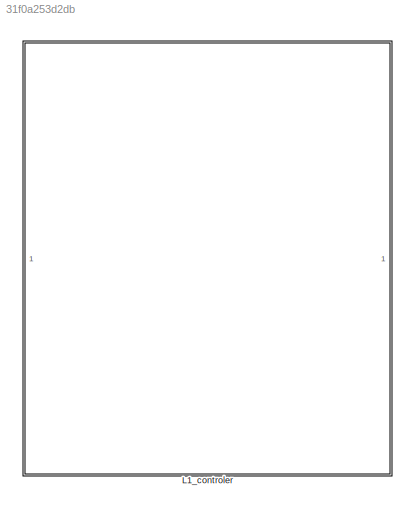
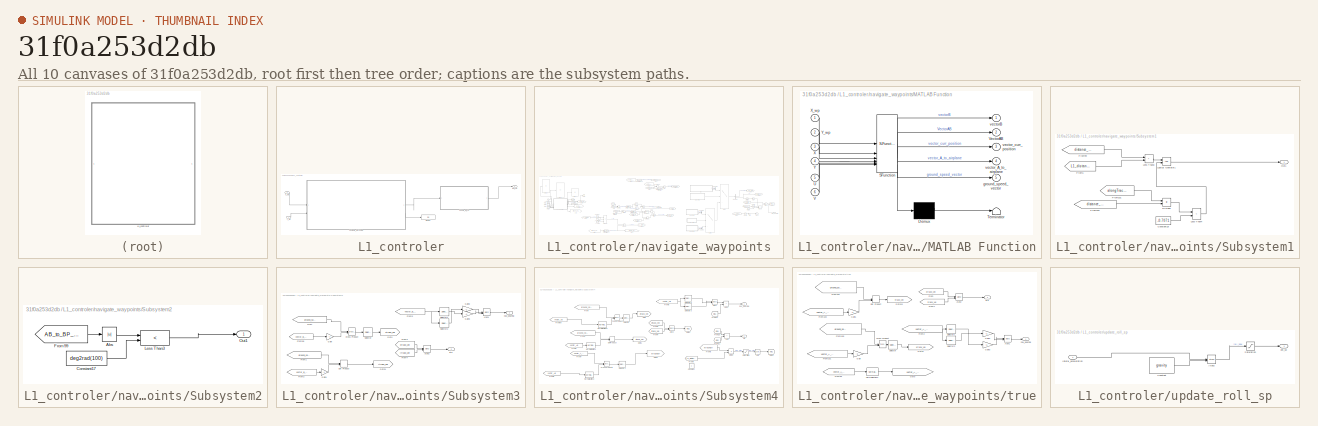
[diagram: thumbnail index - all 10 canvases of the model, root first then tree order]
MODEL slx_31f0a253d2db
KIND model
CONFIG AbsTol = auto
CONFIG EnableMultiTasking = off
CONFIG FixedStep = auto
CONFIG MaxStep = auto
CONFIG MinStep = auto
CONFIG RelTol = 1e-3
CONFIG SampleTimeConstraint = Unconstrained
CONFIG SolverName = VariableStepAuto
CONFIG StartTime = 0.0
CONFIG StopTime = 10.0
BLOCK [SubSystem] L1_controler
BLOCK [Display] L1_controler/Display
  Decimation = 1
BLOCK [Inport] L1_controler/X_wp
BLOCK [Inport] L1_controler/Y_wp
  Port = 2
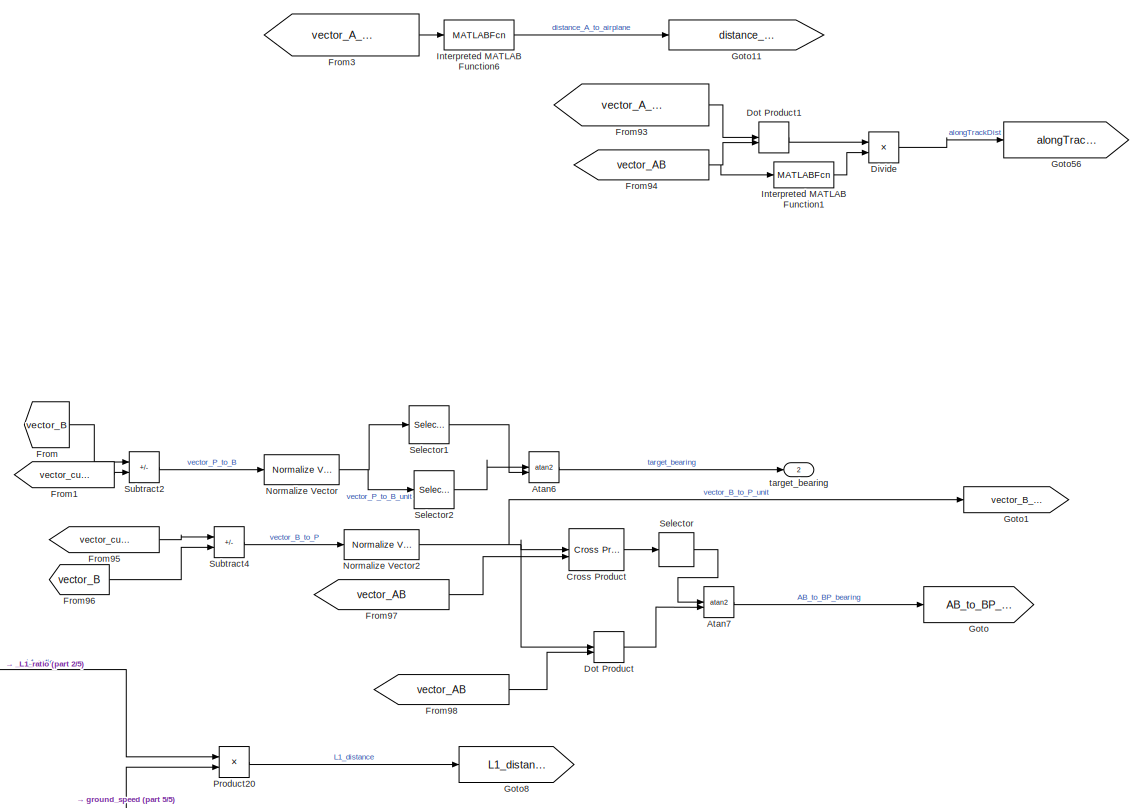
[diagram: L1_controler/navigate_waypoints - part 1/5, center side, full height]
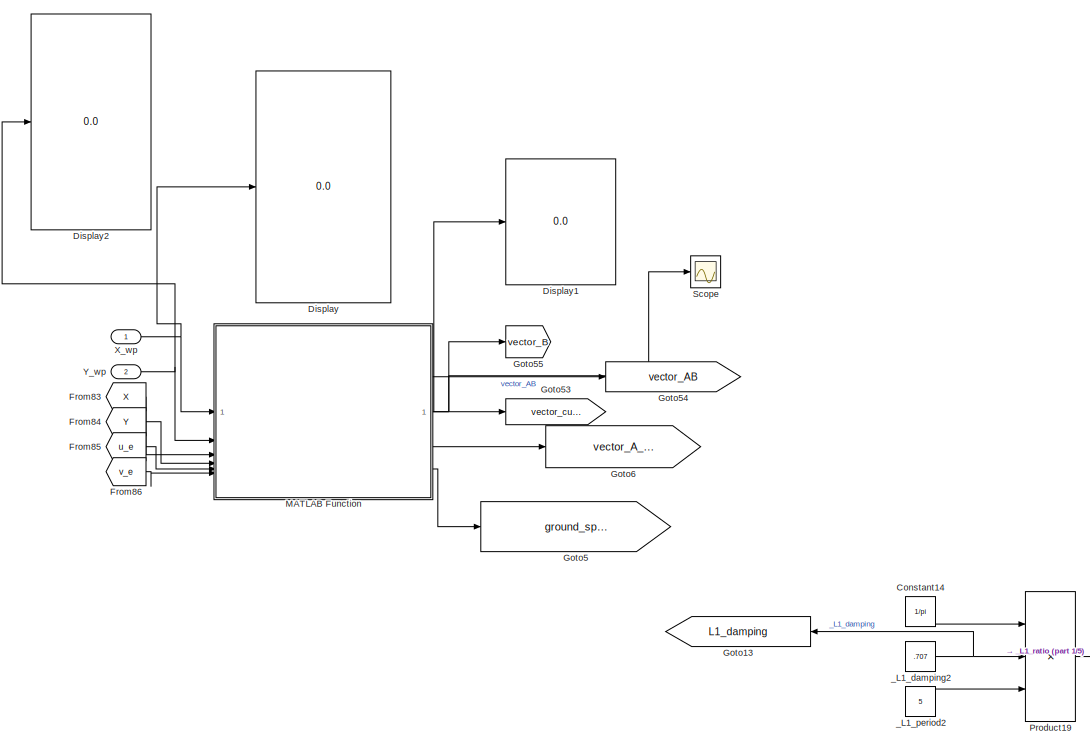
[diagram: L1_controler/navigate_waypoints - part 2/5, left side, full height]
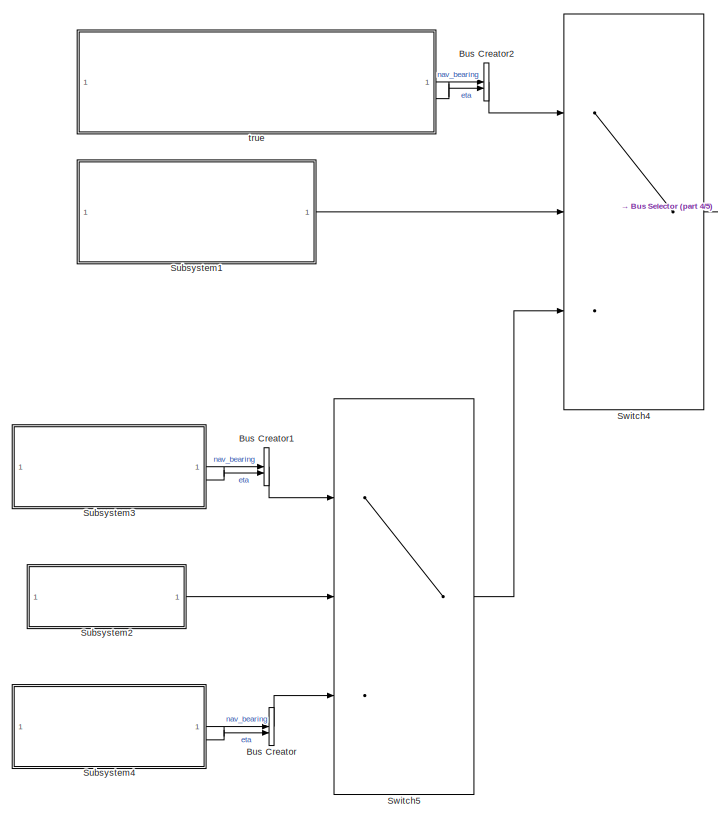
[diagram: L1_controler/navigate_waypoints - part 3/5, right side, full height]
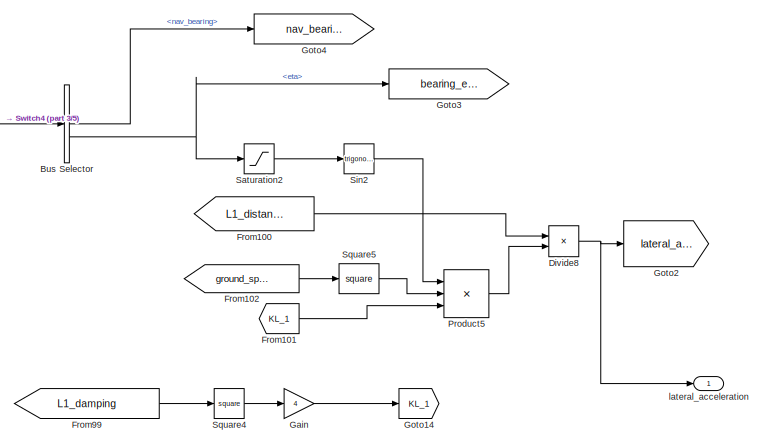
[diagram: L1_controler/navigate_waypoints - part 4/5, middle right region]
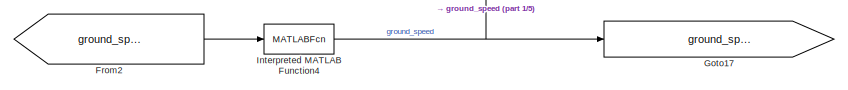
[diagram: L1_controler/navigate_waypoints - part 5/5, bottom left region]
BLOCK [SubSystem] L1_controler/navigate_waypoints
BLOCK [Trigonometry] L1_controler/navigate_waypoints/Atan6
  Operator = atan2
BLOCK [Trigonometry] L1_controler/navigate_waypoints/Atan7
  Operator = atan2
BLOCK [BusCreator] L1_controler/navigate_waypoints/Bus Creator
  DisplayOption = bar
  InheritFromInputs = on
  Inputs = 2
BLOCK [BusCreator] L1_controler/navigate_waypoints/Bus Creator1
  DisplayOption = bar
  InheritFromInputs = on
  Inputs = 2
BLOCK [BusCreator] L1_controler/navigate_waypoints/Bus Creator2
  DisplayOption = bar
  InheritFromInputs = on
  Inputs = 2
BLOCK [BusSelector] L1_controler/navigate_waypoints/Bus Selector
  OutputSignals = nav_bearing,eta
BLOCK [Constant] L1_controler/navigate_waypoints/Constant14
  Value = 1/pi
BLOCK [Reference] L1_controler/navigate_waypoints/Cross Product  REF=matrix_library/Cross Product
  SourceBlock = matrix_library/Cross Product
  SourceType = CrossProduct
BLOCK [Display] L1_controler/navigate_waypoints/Display
  Decimation = 1
BLOCK [Display] L1_controler/navigate_waypoints/Display1
  Decimation = 1
BLOCK [Display] L1_controler/navigate_waypoints/Display2
  Decimation = 1
BLOCK [Product] L1_controler/navigate_waypoints/Divide
  Inputs = */
BLOCK [Product] L1_controler/navigate_waypoints/Divide8
  Inputs = /*
BLOCK [DotProduct] L1_controler/navigate_waypoints/Dot Product
  OutDataTypeStr = Inherit: Inherit via internal rule
BLOCK [DotProduct] L1_controler/navigate_waypoints/Dot Product1
  OutDataTypeStr = Inherit: Inherit via internal rule
BLOCK [From] L1_controler/navigate_waypoints/From
  GotoTag = vector_B
  TagVisibility = global
BLOCK [From] L1_controler/navigate_waypoints/From1
  GotoTag = vector_curr_position
  TagVisibility = global
BLOCK [From] L1_controler/navigate_waypoints/From100
  GotoTag = L1_distance
  TagVisibility = global
BLOCK [From] L1_controler/navigate_waypoints/From101
  GotoTag = KL_1
  TagVisibility = global
BLOCK [From] L1_controler/navigate_waypoints/From102
  GotoTag = ground_speed
  TagVisibility = global
BLOCK [From] L1_controler/navigate_waypoints/From2
  GotoTag = ground_speed_vector
  TagVisibility = global
BLOCK [From] L1_controler/navigate_waypoints/From3
  GotoTag = vector_A_to_airplane
  TagVisibility = global
BLOCK [From] L1_controler/navigate_waypoints/From83
  GotoTag = X
  TagVisibility = global
BLOCK [From] L1_controler/navigate_waypoints/From84
  GotoTag = Y
  TagVisibility = global
BLOCK [From] L1_controler/navigate_waypoints/From85
  GotoTag = u_e
  TagVisibility = global
BLOCK [From] L1_controler/navigate_waypoints/From86
  GotoTag = v_e
  TagVisibility = global
BLOCK [From] L1_controler/navigate_waypoints/From93
  GotoTag = vector_A_to_airplane
  NameLocation = top
  TagVisibility = global
BLOCK [From] L1_controler/navigate_waypoints/From94
  GotoTag = vector_AB
  TagVisibility = global
BLOCK [From] L1_controler/navigate_waypoints/From95
  GotoTag = vector_curr_position
  TagVisibility = global
BLOCK [From] L1_controler/navigate_waypoints/From96
  GotoTag = vector_B
  TagVisibility = global
BLOCK [From] L1_controler/navigate_waypoints/From97
  GotoTag = vector_AB
  TagVisibility = global
BLOCK [From] L1_controler/navigate_waypoints/From98
  GotoTag = vector_AB
  TagVisibility = global
BLOCK [From] L1_controler/navigate_waypoints/From99
  GotoTag = L1_damping
  NameLocation = top
  TagVisibility = global
BLOCK [Gain] L1_controler/navigate_waypoints/Gain
  Gain = 4
BLOCK [Goto] L1_controler/navigate_waypoints/Goto
  GotoTag = AB_to_BP_bearing
  TagVisibility = global
BLOCK [Goto] L1_controler/navigate_waypoints/Goto1
  GotoTag = vector_B_to_P_unit
  TagVisibility = global
BLOCK [Goto] L1_controler/navigate_waypoints/Goto11
  GotoTag = distance_A_to_airplane
  TagVisibility = global
BLOCK [Goto] L1_controler/navigate_waypoints/Goto13
  GotoTag = L1_damping
  NameLocation = top
  TagVisibility = global
BLOCK [Goto] L1_controler/navigate_waypoints/Goto14
  GotoTag = KL_1
  TagVisibility = global
BLOCK [Goto] L1_controler/navigate_waypoints/Goto17
  GotoTag = ground_speed
  TagVisibility = global
BLOCK [Goto] L1_controler/navigate_waypoints/Goto2
  GotoTag = lateral_accel
  TagVisibility = global
BLOCK [Goto] L1_controler/navigate_waypoints/Goto3
  GotoTag = bearing_error
  TagVisibility = global
BLOCK [Goto] L1_controler/navigate_waypoints/Goto4
  GotoTag = nav_bearing
  TagVisibility = global
BLOCK [Goto] L1_controler/navigate_waypoints/Goto5
  GotoTag = ground_speed_vector
  TagVisibility = global
BLOCK [Goto] L1_controler/navigate_waypoints/Goto53
  GotoTag = vector_curr_position
  TagVisibility = global
BLOCK [Goto] L1_controler/navigate_waypoints/Goto54
  GotoTag = vector_AB
  TagVisibility = global
BLOCK [Goto] L1_controler/navigate_waypoints/Goto55
  GotoTag = vector_B
  TagVisibility = global
BLOCK [Goto] L1_controler/navigate_waypoints/Goto56
  GotoTag = alongTrackDist
  TagVisibility = global
BLOCK [Goto] L1_controler/navigate_waypoints/Goto6
  GotoTag = vector_A_to_airplane
  TagVisibility = global
BLOCK [Goto] L1_controler/navigate_waypoints/Goto8
  GotoTag = L1_distance
  TagVisibility = global
BLOCK [MATLABFcn] L1_controler/navigate_waypoints/Interpreted MATLAB Function1
  MATLABFcn = norm
BLOCK [MATLABFcn] L1_controler/navigate_waypoints/Interpreted MATLAB Function4
  MATLABFcn = norm
BLOCK [MATLABFcn] L1_controler/navigate_waypoints/Interpreted MATLAB Function6
  MATLABFcn = norm
BLOCK [SubSystem] L1_controler/navigate_waypoints/MATLAB Function
  ErrorFcn = Stateflow.Translate.translate
  PermitHierarchicalResolution = ExplicitOnly
  SFBlockType = MATLAB Function
  TreatAsAtomicUnit = on
BLOCK [Demux] L1_controler/navigate_waypoints/MATLAB Function/ Demux 
  Outputs = 1
BLOCK [S-Function] L1_controler/navigate_waypoints/MATLAB Function/ SFunction 
  EnableBusSupport = on
  FunctionName = sf_sfun
  PortCounts = [6 6]
  SFcnIsStateOwnerBlock = off
  SFunctionDeploymentMode = off
  Tag = Stateflow S-Function 2
BLOCK [Terminator] L1_controler/navigate_waypoints/MATLAB Function/ Terminator 
BLOCK [Inport] L1_controler/navigate_waypoints/MATLAB Function/U
  Port = 5
BLOCK [Inport] L1_controler/navigate_waypoints/MATLAB Function/V
  Port = 6
BLOCK [Outport] L1_controler/navigate_waypoints/MATLAB Function/VectorAB
  Port = 2
BLOCK [Inport] L1_controler/navigate_waypoints/MATLAB Function/X
  Port = 3
BLOCK [Inport] L1_controler/navigate_waypoints/MATLAB Function/X_wp
BLOCK [Inport] L1_controler/navigate_waypoints/MATLAB Function/Y
  Port = 4
BLOCK [Inport] L1_controler/navigate_waypoints/MATLAB Function/Y_wp
  Port = 2
BLOCK [Outport] L1_controler/navigate_waypoints/MATLAB Function/ground_speed_vector
  Port = 5
BLOCK [Outport] L1_controler/navigate_waypoints/MATLAB Function/vectorB
BLOCK [Outport] L1_controler/navigate_waypoints/MATLAB Function/vector_A_to_airplane
  Port = 4
BLOCK [Outport] L1_controler/navigate_waypoints/MATLAB Function/vector_curr_position
  Port = 3
BLOCK [Reference] L1_controler/navigate_waypoints/Normalize Vector  REF=vrlib/Utilities/Normalize Vector
  SourceBlock = vrlib/Utilities/Normalize Vector
  SourceType = Normalize Vector
BLOCK [Reference] L1_controler/navigate_waypoints/Normalize Vector2  REF=vrlib/Utilities/Normalize Vector
  Commented = through
  SourceBlock = vrlib/Utilities/Normalize Vector
  SourceType = Normalize Vector
BLOCK [Product] L1_controler/navigate_waypoints/Product19
  Inputs = 3
BLOCK [Product] L1_controler/navigate_waypoints/Product20
BLOCK [Product] L1_controler/navigate_waypoints/Product5
  Inputs = 3
BLOCK [Saturate] L1_controler/navigate_waypoints/Saturation2
  LowerLimit = -pi/2
  UpperLimit = pi/2
BLOCK [Scope] L1_controler/navigate_waypoints/Scope
  Floating = off
  NumInputPorts = 1
  ScopeSpecificationString = Simulink.scopes.TimeScopeBlockCfg('CurrentConfiguration', extmgr.ConfigurationSet(extmgr.Configuration('Core','General UI',true),extmgr.Configuration('Core','Source UI',true),extmgr.Configuration('Sources','WiredSimulink',true,'DataLoggingVariableName','ScopeData1'),extmgr.Configuration('Visuals','Time Domain',true),extmgr.Configuration('Tools','Plot Navigation',true),extmgr.Configuration('Tools',...<+40ch>
BLOCK [Selector] L1_controler/navigate_waypoints/Selector
  IndexOptions = Index vector (dialog)
  Indices = 3
  InputPortWidth = 3
  OutputSizes = 1
BLOCK [Selector] L1_controler/navigate_waypoints/Selector1
  IndexOptions = Index vector (dialog)
  Indices = 1
  InputPortWidth = 3
  OutputSizes = 1
BLOCK [Selector] L1_controler/navigate_waypoints/Selector2
  IndexOptions = Index vector (dialog)
  Indices = 2
  InputPortWidth = 3
  OutputSizes = 1
BLOCK [Trigonometry] L1_controler/navigate_waypoints/Sin2
BLOCK [Math] L1_controler/navigate_waypoints/Square4
  Operator = square
BLOCK [Math] L1_controler/navigate_waypoints/Square5
  Operator = square
BLOCK [SubSystem] L1_controler/navigate_waypoints/Subsystem1
BLOCK [Constant] L1_controler/navigate_waypoints/Subsystem1/Constant18
  Value = -0.7071
BLOCK [Product] L1_controler/navigate_waypoints/Subsystem1/Divide8
  Inputs = */
BLOCK [From] L1_controler/navigate_waypoints/Subsystem1/From1
  GotoTag = L1_distance
  TagVisibility = global
BLOCK [From] L1_controler/navigate_waypoints/Subsystem1/From101
  GotoTag = alongTrackDist
  TagVisibility = global
BLOCK [From] L1_controler/navigate_waypoints/Subsystem1/From102
  GotoTag = distance_A_to_airplane
  TagVisibility = global
BLOCK [From] L1_controler/navigate_waypoints/Subsystem1/From99
  GotoTag = distance_A_to_airplane
  TagVisibility = global
BLOCK [RelationalOperator] L1_controler/navigate_waypoints/Subsystem1/Less Than3
  InputSameDT = off
  Operator = >
  OutDataTypeStr = boolean
  RndMeth = Simplest
BLOCK [RelationalOperator] L1_controler/navigate_waypoints/Subsystem1/Less Than4
  InputSameDT = off
  Operator = <
  OutDataTypeStr = boolean
  RndMeth = Simplest
BLOCK [Logic] L1_controler/navigate_waypoints/Subsystem1/Logical Operator1
  AllPortsSameDT = off
  OutDataTypeStr = boolean
BLOCK [Outport] L1_controler/navigate_waypoints/Subsystem1/Out1
BLOCK [SubSystem] L1_controler/navigate_waypoints/Subsystem2
BLOCK [Abs] L1_controler/navigate_waypoints/Subsystem2/Abs
  SaturateOnIntegerOverflow = off
BLOCK [Constant] L1_controler/navigate_waypoints/Subsystem2/Constant17
  Value = deg2rad(100)
BLOCK [From] L1_controler/navigate_waypoints/Subsystem2/From99
  GotoTag = AB_to_BP_bearing
  TagVisibility = global
BLOCK [RelationalOperator] L1_controler/navigate_waypoints/Subsystem2/Less Than3
  InputSameDT = off
  Operator = <
  OutDataTypeStr = boolean
  RndMeth = Simplest
BLOCK [Outport] L1_controler/navigate_waypoints/Subsystem2/Out1
BLOCK [SubSystem] L1_controler/navigate_waypoints/Subsystem3
BLOCK [Trigonometry] L1_controler/navigate_waypoints/Subsystem3/Atan1
  Operator = atan2
BLOCK [Trigonometry] L1_controler/navigate_waypoints/Subsystem3/Atan2
  Operator = atan2
BLOCK [Reference] L1_controler/navigate_waypoints/Subsystem3/Cross Product  REF=vrlib/Utilities/Cross Product
  SourceBlock = vrlib/Utilities/Cross Product
  SourceType = Cross Product
BLOCK [DotProduct] L1_controler/navigate_waypoints/Subsystem3/Dot Product
  OutDataTypeStr = Inherit: Inherit via internal rule
BLOCK [From] L1_controler/navigate_waypoints/Subsystem3/From
  GotoTag = ground_speed_vector
  TagVisibility = global
BLOCK [From] L1_controler/navigate_waypoints/Subsystem3/From1
  GotoTag = ground_speed_vector
  TagVisibility = global
BLOCK [From] L1_controler/navigate_waypoints/Subsystem3/From2
  GotoTag = vector_B_to_P_unit
  TagVisibility = global
BLOCK [From] L1_controler/navigate_waypoints/Subsystem3/From3
  GotoTag = xtrack_vel
BLOCK [From] L1_controler/navigate_waypoints/Subsystem3/From4
  GotoTag = ltrack_vel
BLOCK [From] L1_controler/navigate_waypoints/Subsystem3/From5
  GotoTag = vector_B_to_P_unit
  TagVisibility = global
BLOCK [From] L1_controler/navigate_waypoints/Subsystem3/From99
  GotoTag = vector_B_to_P_unit
  TagVisibility = global
BLOCK [Gain] L1_controler/navigate_waypoints/Subsystem3/Gain
  Gain = -1
BLOCK [Gain] L1_controler/navigate_waypoints/Subsystem3/Gain1
  Gain = -1
BLOCK [Gain] L1_controler/navigate_waypoints/Subsystem3/Gain2
  Gain = -1
BLOCK [Gain] L1_controler/navigate_waypoints/Subsystem3/Gain3
  Gain = -1
BLOCK [Goto] L1_controler/navigate_waypoints/Subsystem3/Goto
  GotoTag = xtrack_vel
BLOCK [Goto] L1_controler/navigate_waypoints/Subsystem3/Goto1
  GotoTag = ltrack_vel
BLOCK [Selector] L1_controler/navigate_waypoints/Subsystem3/Selector
  IndexOptions = Index vector (dialog)
  Indices = 3
  InputPortWidth = 3
  OutputSizes = 1
BLOCK [Selector] L1_controler/navigate_waypoints/Subsystem3/Selector1
  IndexOptions = Index vector (dialog)
  Indices = 1
  InputPortWidth = 3
  OutputSizes = 1
BLOCK [Selector] L1_controler/navigate_waypoints/Subsystem3/Selector2
  IndexOptions = Index vector (dialog)
  Indices = 2
  InputPortWidth = 3
  OutputSizes = 1
BLOCK [Outport] L1_controler/navigate_waypoints/Subsystem3/eta
  Port = 2
BLOCK [Outport] L1_controler/navigate_waypoints/Subsystem3/nav_bearing
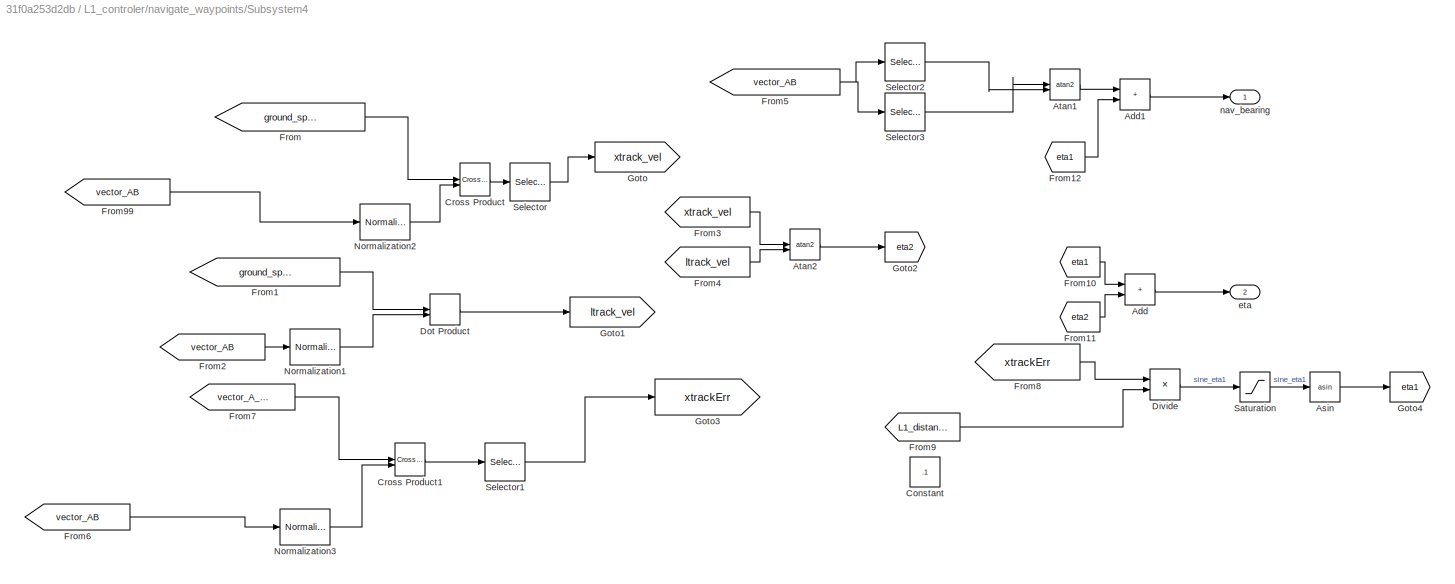
BLOCK [SubSystem] L1_controler/navigate_waypoints/Subsystem4
BLOCK [Sum] L1_controler/navigate_waypoints/Subsystem4/Add
  IconShape = rectangular
BLOCK [Sum] L1_controler/navigate_waypoints/Subsystem4/Add1
  IconShape = rectangular
BLOCK [Trigonometry] L1_controler/navigate_waypoints/Subsystem4/Asin
  Operator = asin
BLOCK [Trigonometry] L1_controler/navigate_waypoints/Subsystem4/Atan1
  Operator = atan2
BLOCK [Trigonometry] L1_controler/navigate_waypoints/Subsystem4/Atan2
  Operator = atan2
BLOCK [Constant] L1_controler/navigate_waypoints/Subsystem4/Constant
  Value = .1
BLOCK [Reference] L1_controler/navigate_waypoints/Subsystem4/Cross Product  REF=vrlib/Utilities/Cross Product
  SourceBlock = vrlib/Utilities/Cross Product
  SourceType = Cross Product
BLOCK [Reference] L1_controler/navigate_waypoints/Subsystem4/Cross Product1  REF=vrlib/Utilities/Cross Product
  SourceBlock = vrlib/Utilities/Cross Product
  SourceType = Cross Product
BLOCK [Product] L1_controler/navigate_waypoints/Subsystem4/Divide
  Inputs = */
BLOCK [DotProduct] L1_controler/navigate_waypoints/Subsystem4/Dot Product
  OutDataTypeStr = Inherit: Inherit via internal rule
BLOCK [From] L1_controler/navigate_waypoints/Subsystem4/From
  GotoTag = ground_speed_vector
  TagVisibility = global
BLOCK [From] L1_controler/navigate_waypoints/Subsystem4/From1
  GotoTag = ground_speed_vector
  TagVisibility = global
BLOCK [From] L1_controler/navigate_waypoints/Subsystem4/From10
  GotoTag = eta1
BLOCK [From] L1_controler/navigate_waypoints/Subsystem4/From11
  GotoTag = eta2
BLOCK [From] L1_controler/navigate_waypoints/Subsystem4/From12
  GotoTag = eta1
BLOCK [From] L1_controler/navigate_waypoints/Subsystem4/From2
  GotoTag = vector_AB
  TagVisibility = global
BLOCK [From] L1_controler/navigate_waypoints/Subsystem4/From3
  GotoTag = xtrack_vel
BLOCK [From] L1_controler/navigate_waypoints/Subsystem4/From4
  GotoTag = ltrack_vel
BLOCK [From] L1_controler/navigate_waypoints/Subsystem4/From5
  GotoTag = vector_AB
  TagVisibility = global
BLOCK [From] L1_controler/navigate_waypoints/Subsystem4/From6
  GotoTag = vector_AB
  TagVisibility = global
BLOCK [From] L1_controler/navigate_waypoints/Subsystem4/From7
  GotoTag = vector_A_to_airplane
  TagVisibility = global
BLOCK [From] L1_controler/navigate_waypoints/Subsystem4/From8
  GotoTag = xtrackErr
BLOCK [From] L1_controler/navigate_waypoints/Subsystem4/From9
  GotoTag = L1_distance
  TagVisibility = global
BLOCK [From] L1_controler/navigate_waypoints/Subsystem4/From99
  GotoTag = vector_AB
  TagVisibility = global
BLOCK [Goto] L1_controler/navigate_waypoints/Subsystem4/Goto
  GotoTag = xtrack_vel
BLOCK [Goto] L1_controler/navigate_waypoints/Subsystem4/Goto1
  GotoTag = ltrack_vel
BLOCK [Goto] L1_controler/navigate_waypoints/Subsystem4/Goto2
  GotoTag = eta2
BLOCK [Goto] L1_controler/navigate_waypoints/Subsystem4/Goto3
  GotoTag = xtrackErr
BLOCK [Goto] L1_controler/navigate_waypoints/Subsystem4/Goto4
  GotoTag = eta1
BLOCK [Reference] L1_controler/navigate_waypoints/Subsystem4/Normalization1  REF=dspmathops/Normalization
  SourceBlock = dspmathops/Normalization
  SourceType = Normalization
BLOCK [Reference] L1_controler/navigate_waypoints/Subsystem4/Normalization2  REF=dspmathops/Normalization
  SourceBlock = dspmathops/Normalization
  SourceType = Normalization
BLOCK [Reference] L1_controler/navigate_waypoints/Subsystem4/Normalization3  REF=dspmathops/Normalization
  SourceBlock = dspmathops/Normalization
  SourceType = Normalization
BLOCK [Saturate] L1_controler/navigate_waypoints/Subsystem4/Saturation
  LowerLimit = -sin(pi/4)
  UpperLimit = sin(pi/4)
BLOCK [Selector] L1_controler/navigate_waypoints/Subsystem4/Selector
  IndexOptions = Index vector (dialog)
  Indices = [3]
  InputPortWidth = 3
  OutputSizes = 1
BLOCK [Selector] L1_controler/navigate_waypoints/Subsystem4/Selector1
  IndexOptions = Index vector (dialog)
  Indices = [3]
  InputPortWidth = 3
  OutputSizes = 1
BLOCK [Selector] L1_controler/navigate_waypoints/Subsystem4/Selector2
  IndexOptions = Index vector (dialog)
  Indices = 1
  InputPortWidth = 3
  OutputSizes = 1
BLOCK [Selector] L1_controler/navigate_waypoints/Subsystem4/Selector3
  IndexOptions = Index vector (dialog)
  Indices = 2
  InputPortWidth = 3
  OutputSizes = 1
BLOCK [Outport] L1_controler/navigate_waypoints/Subsystem4/eta
  Port = 2
BLOCK [Outport] L1_controler/navigate_waypoints/Subsystem4/nav_bearing
BLOCK [Sum] L1_controler/navigate_waypoints/Subtract2
  IconShape = rectangular
  Inputs = +-
BLOCK [Sum] L1_controler/navigate_waypoints/Subtract4
  IconShape = rectangular
  Inputs = +-
BLOCK [Switch] L1_controler/navigate_waypoints/Switch4
  Criteria = u2 ~= 0
  InputSameDT = off
  SaturateOnIntegerOverflow = off
BLOCK [Switch] L1_controler/navigate_waypoints/Switch5
  Criteria = u2 ~= 0
  InputSameDT = off
  SaturateOnIntegerOverflow = off
BLOCK [Inport] L1_controler/navigate_waypoints/X_wp
BLOCK [Inport] L1_controler/navigate_waypoints/Y_wp
  Port = 2
BLOCK [Constant] L1_controler/navigate_waypoints/_L1_damping2
  Value = .707
BLOCK [Constant] L1_controler/navigate_waypoints/_L1_period2
  Value = 5
BLOCK [Outport] L1_controler/navigate_waypoints/lateral_acceleration
BLOCK [Outport] L1_controler/navigate_waypoints/target_bearing
  Port = 2
BLOCK [SubSystem] L1_controler/navigate_waypoints/true
BLOCK [Trigonometry] L1_controler/navigate_waypoints/true/Atan1
  Operator = atan2
BLOCK [Trigonometry] L1_controler/navigate_waypoints/true/Atan2
  Operator = atan2
BLOCK [Reference] L1_controler/navigate_waypoints/true/Cross Product  REF=vrlib/Utilities/Cross Product
  SourceBlock = vrlib/Utilities/Cross Product
  SourceType = Cross Product
BLOCK [DotProduct] L1_controler/navigate_waypoints/true/Dot Product
  OutDataTypeStr = Inherit: Inherit via internal rule
BLOCK [From] L1_controler/navigate_waypoints/true/From
  GotoTag = xtrack_vel
BLOCK [From] L1_controler/navigate_waypoints/true/From1
  GotoTag = ltrack_vel
BLOCK [From] L1_controler/navigate_waypoints/true/From100
  GotoTag = ground_speed_vector
  TagVisibility = global
BLOCK [From] L1_controler/navigate_waypoints/true/From101
  GotoTag = vector_A_to_airplane_unit
BLOCK [From] L1_controler/navigate_waypoints/true/From102
  GotoTag = ground_speed_vector
  TagVisibility = global
BLOCK [From] L1_controler/navigate_waypoints/true/From103
  GotoTag = vector_A_to_airplane_unit
BLOCK [From] L1_controler/navigate_waypoints/true/From2
  GotoTag = vector_A_to_airplane_unit
BLOCK [From] L1_controler/navigate_waypoints/true/From99
  GotoTag = vector_A_to_airplane
  TagVisibility = global
BLOCK [Gain] L1_controler/navigate_waypoints/true/Gain
  Gain = -1
BLOCK [Gain] L1_controler/navigate_waypoints/true/Gain1
  Gain = -1
BLOCK [Gain] L1_controler/navigate_waypoints/true/Gain2
  Gain = -1
BLOCK [Gain] L1_controler/navigate_waypoints/true/Gain3
  Gain = -1
BLOCK [Goto] L1_controler/navigate_waypoints/true/Goto
  GotoTag = vector_A_to_airplane_unit
BLOCK [Goto] L1_controler/navigate_waypoints/true/Goto1
  GotoTag = xtrack_vel
BLOCK [Goto] L1_controler/navigate_waypoints/true/Goto13
  GotoTag = ltrack_vel
BLOCK [Reference] L1_controler/navigate_waypoints/true/Normalization4  REF=dspmathops/Normalization
  SourceBlock = dspmathops/Normalization
  SourceType = Normalization
BLOCK [Selector] L1_controler/navigate_waypoints/true/Selector
  IndexOptions = Index vector (dialog)
  Indices = 3
  InputPortWidth = 3
  OutputSizes = 1
BLOCK [Selector] L1_controler/navigate_waypoints/true/Selector1
  IndexOptions = Index vector (dialog)
  Indices = 1
  InputPortWidth = 3
  OutputSizes = 1
BLOCK [Selector] L1_controler/navigate_waypoints/true/Selector2
  IndexOptions = Index vector (dialog)
  Indices = 2
  InputPortWidth = 3
  OutputSizes = 1
BLOCK [Outport] L1_controler/navigate_waypoints/true/eta
  Port = 2
BLOCK [Outport] L1_controler/navigate_waypoints/true/nav_bearing
BLOCK [Outport] L1_controler/phi_sp
BLOCK [SubSystem] L1_controler/update_roll_sp
BLOCK [Trigonometry] L1_controler/update_roll_sp/Atan2
  Operator = atan2
BLOCK [Constant] L1_controler/update_roll_sp/Constant
  Value = gravity
BLOCK [Saturate] L1_controler/update_roll_sp/Saturation
  LowerLimit = -deg2rad(70)
  UpperLimit = deg2rad(70)
BLOCK [Inport] L1_controler/update_roll_sp/lateral_acceleration
BLOCK [Outport] L1_controler/update_roll_sp/phi_sp
LINE L1_controler/X_wp:1 -> L1_controler/navigate_waypoints:1
LINE L1_controler/Y_wp:1 -> L1_controler/navigate_waypoints:2
LINE L1_controler/navigate_waypoints/Atan6:1 -> L1_controler/navigate_waypoints/target_bearing:1
LINE L1_controler/navigate_waypoints/Atan7:1 -> L1_controler/navigate_waypoints/Goto:1
LINE L1_controler/navigate_waypoints/Bus Creator1:1 -> L1_controler/navigate_waypoints/Switch5:1
LINE L1_controler/navigate_waypoints/Bus Creator2:1 -> L1_controler/navigate_waypoints/Switch4:1
LINE L1_controler/navigate_waypoints/Bus Creator:1 -> L1_controler/navigate_waypoints/Switch5:3
LINE L1_controler/navigate_waypoints/Bus Selector:1 -> L1_controler/navigate_waypoints/Goto4:1
NET L1_controler/navigate_waypoints/Bus Selector:2 -> L1_controler/navigate_waypoints/Goto3:1, L1_controler/navigate_waypoints/Saturation2:1
LINE L1_controler/navigate_waypoints/Constant14:1 -> L1_controler/navigate_waypoints/Product19:1
LINE L1_controler/navigate_waypoints/Cross Product:1 -> L1_controler/navigate_waypoints/Selector:1
NET L1_controler/navigate_waypoints/Divide8:1 -> L1_controler/navigate_waypoints/Goto2:1, L1_controler/navigate_waypoints/lateral_acceleration:1
LINE L1_controler/navigate_waypoints/Divide:1 -> L1_controler/navigate_waypoints/Goto56:1
LINE L1_controler/navigate_waypoints/Dot Product1:1 -> L1_controler/navigate_waypoints/Divide:1
LINE L1_controler/navigate_waypoints/Dot Product:1 -> L1_controler/navigate_waypoints/Atan7:2
LINE L1_controler/navigate_waypoints/From100:1 -> L1_controler/navigate_waypoints/Divide8:1
LINE L1_controler/navigate_waypoints/From101:1 -> L1_controler/navigate_waypoints/Product5:3
LINE L1_controler/navigate_waypoints/From102:1 -> L1_controler/navigate_waypoints/Square5:1
LINE L1_controler/navigate_waypoints/From1:1 -> L1_controler/navigate_waypoints/Subtract2:2
LINE L1_controler/navigate_waypoints/From2:1 -> L1_controler/navigate_waypoints/Interpreted MATLAB Function4:1
LINE L1_controler/navigate_waypoints/From3:1 -> L1_controler/navigate_waypoints/Interpreted MATLAB Function6:1
LINE L1_controler/navigate_waypoints/From83:1 -> L1_controler/navigate_waypoints/MATLAB Function:3
LINE L1_controler/navigate_waypoints/From84:1 -> L1_controler/navigate_waypoints/MATLAB Function:4
LINE L1_controler/navigate_waypoints/From85:1 -> L1_controler/navigate_waypoints/MATLAB Function:5
LINE L1_controler/navigate_waypoints/From86:1 -> L1_controler/navigate_waypoints/MATLAB Function:6
LINE L1_controler/navigate_waypoints/From93:1 -> L1_controler/navigate_waypoints/Dot Product1:1
NET L1_controler/navigate_waypoints/From94:1 -> L1_controler/navigate_waypoints/Dot Product1:2, L1_controler/navigate_waypoints/Interpreted MATLAB Function1:1
LINE L1_controler/navigate_waypoints/From95:1 -> L1_controler/navigate_waypoints/Subtract4:1
LINE L1_controler/navigate_waypoints/From96:1 -> L1_controler/navigate_waypoints/Subtract4:2
LINE L1_controler/navigate_waypoints/From97:1 -> L1_controler/navigate_waypoints/Cross Product:2
LINE L1_controler/navigate_waypoints/From98:1 -> L1_controler/navigate_waypoints/Dot Product:2
LINE L1_controler/navigate_waypoints/From99:1 -> L1_controler/navigate_waypoints/Square4:1
LINE L1_controler/navigate_waypoints/From:1 -> L1_controler/navigate_waypoints/Subtract2:1
LINE L1_controler/navigate_waypoints/Gain:1 -> L1_controler/navigate_waypoints/Goto14:1
LINE L1_controler/navigate_waypoints/Interpreted MATLAB Function1:1 -> L1_controler/navigate_waypoints/Divide:2
NET L1_controler/navigate_waypoints/Interpreted MATLAB Function4:1 -> L1_controler/navigate_waypoints/Goto17:1, L1_controler/navigate_waypoints/Product20:2
LINE L1_controler/navigate_waypoints/Interpreted MATLAB Function6:1 -> L1_controler/navigate_waypoints/Goto11:1
NET L1_controler/navigate_waypoints/MATLAB Function:1 -> L1_controler/navigate_waypoints/Display1:1, L1_controler/navigate_waypoints/Goto55:1, L1_controler/navigate_waypoints/Scope:1
LINE L1_controler/navigate_waypoints/MATLAB Function:2 -> L1_controler/navigate_waypoints/Goto54:1
LINE L1_controler/navigate_waypoints/MATLAB Function:3 -> L1_controler/navigate_waypoints/Goto53:1
LINE L1_controler/navigate_waypoints/MATLAB Function:4 -> L1_controler/navigate_waypoints/Goto6:1
LINE L1_controler/navigate_waypoints/MATLAB Function:5 -> L1_controler/navigate_waypoints/Goto5:1
NET L1_controler/navigate_waypoints/Normalize Vector2:1 -> L1_controler/navigate_waypoints/Cross Product:1, L1_controler/navigate_waypoints/Dot Product:1, L1_controler/navigate_waypoints/Goto1:1
NET L1_controler/navigate_waypoints/Normalize Vector:1 -> L1_controler/navigate_waypoints/Selector1:1, L1_controler/navigate_waypoints/Selector2:1
LINE L1_controler/navigate_waypoints/Product19:1 -> L1_controler/navigate_waypoints/Product20:1
LINE L1_controler/navigate_waypoints/Product20:1 -> L1_controler/navigate_waypoints/Goto8:1
LINE L1_controler/navigate_waypoints/Product5:1 -> L1_controler/navigate_waypoints/Divide8:2
LINE L1_controler/navigate_waypoints/Saturation2:1 -> L1_controler/navigate_waypoints/Sin2:1
LINE L1_controler/navigate_waypoints/Selector1:1 -> L1_controler/navigate_waypoints/Atan6:2
LINE L1_controler/navigate_waypoints/Selector2:1 -> L1_controler/navigate_waypoints/Atan6:1
LINE L1_controler/navigate_waypoints/Selector:1 -> L1_controler/navigate_waypoints/Atan7:1
LINE L1_controler/navigate_waypoints/Sin2:1 -> L1_controler/navigate_waypoints/Product5:1
LINE L1_controler/navigate_waypoints/Square4:1 -> L1_controler/navigate_waypoints/Gain:1
LINE L1_controler/navigate_waypoints/Square5:1 -> L1_controler/navigate_waypoints/Product5:2
LINE L1_controler/navigate_waypoints/Subsystem1/Constant18:1 -> L1_controler/navigate_waypoints/Subsystem1/Less Than4:2
LINE L1_controler/navigate_waypoints/Subsystem1/Divide8:1 -> L1_controler/navigate_waypoints/Subsystem1/Less Than4:1
LINE L1_controler/navigate_waypoints/Subsystem1/From101:1 -> L1_controler/navigate_waypoints/Subsystem1/Divide8:1
LINE L1_controler/navigate_waypoints/Subsystem1/From102:1 -> L1_controler/navigate_waypoints/Subsystem1/Divide8:2
LINE L1_controler/navigate_waypoints/Subsystem1/From1:1 -> L1_controler/navigate_waypoints/Subsystem1/Less Than3:2
LINE L1_controler/navigate_waypoints/Subsystem1/From99:1 -> L1_controler/navigate_waypoints/Subsystem1/Less Than3:1
LINE L1_controler/navigate_waypoints/Subsystem1/Less Than3:1 -> L1_controler/navigate_waypoints/Subsystem1/Logical Operator1:1
LINE L1_controler/navigate_waypoints/Subsystem1/Less Than4:1 -> L1_controler/navigate_waypoints/Subsystem1/Logical Operator1:2
LINE L1_controler/navigate_waypoints/Subsystem1/Logical Operator1:1 -> L1_controler/navigate_waypoints/Subsystem1/Out1:1
LINE L1_controler/navigate_waypoints/Subsystem1:1 -> L1_controler/navigate_waypoints/Switch4:2
LINE L1_controler/navigate_waypoints/Subsystem2/Abs:1 -> L1_controler/navigate_waypoints/Subsystem2/Less Than3:1
LINE L1_controler/navigate_waypoints/Subsystem2/Constant17:1 -> L1_controler/navigate_waypoints/Subsystem2/Less Than3:2
LINE L1_controler/navigate_waypoints/Subsystem2/From99:1 -> L1_controler/navigate_waypoints/Subsystem2/Abs:1
LINE L1_controler/navigate_waypoints/Subsystem2/Less Than3:1 -> L1_controler/navigate_waypoints/Subsystem2/Out1:1
LINE L1_controler/navigate_waypoints/Subsystem2:1 -> L1_controler/navigate_waypoints/Switch5:2
LINE L1_controler/navigate_waypoints/Subsystem3/Atan1:1 -> L1_controler/navigate_waypoints/Subsystem3/nav_bearing:1
LINE L1_controler/navigate_waypoints/Subsystem3/Atan2:1 -> L1_controler/navigate_waypoints/Subsystem3/eta:1
LINE L1_controler/navigate_waypoints/Subsystem3/Cross Product:1 -> L1_controler/navigate_waypoints/Subsystem3/Selector:1
LINE L1_controler/navigate_waypoints/Subsystem3/Dot Product:1 -> L1_controler/navigate_waypoints/Subsystem3/Goto1:1
LINE L1_controler/navigate_waypoints/Subsystem3/From1:1 -> L1_controler/navigate_waypoints/Subsystem3/Dot Product:1
LINE L1_controler/navigate_waypoints/Subsystem3/From2:1 -> L1_controler/navigate_waypoints/Subsystem3/Gain1:1
LINE L1_controler/navigate_waypoints/Subsystem3/From3:1 -> L1_controler/navigate_waypoints/Subsystem3/Atan2:1
LINE L1_controler/navigate_waypoints/Subsystem3/From4:1 -> L1_controler/navigate_waypoints/Subsystem3/Atan2:2
NET L1_controler/navigate_waypoints/Subsystem3/From5:1 -> L1_controler/navigate_waypoints/Subsystem3/Selector1:1, L1_controler/navigate_waypoints/Subsystem3/Selector2:1
LINE L1_controler/navigate_waypoints/Subsystem3/From99:1 -> L1_controler/navigate_waypoints/Subsystem3/Gain:1
LINE L1_controler/navigate_waypoints/Subsystem3/From:1 -> L1_controler/navigate_waypoints/Subsystem3/Cross Product:1
LINE L1_controler/navigate_waypoints/Subsystem3/Gain1:1 -> L1_controler/navigate_waypoints/Subsystem3/Dot Product:2
LINE L1_controler/navigate_waypoints/Subsystem3/Gain2:1 -> L1_controler/navigate_waypoints/Subsystem3/Atan1:2
LINE L1_controler/navigate_waypoints/Subsystem3/Gain3:1 -> L1_controler/navigate_waypoints/Subsystem3/Atan1:1
LINE L1_controler/navigate_waypoints/Subsystem3/Gain:1 -> L1_controler/navigate_waypoints/Subsystem3/Cross Product:2
LINE L1_controler/navigate_waypoints/Subsystem3/Selector1:1 -> L1_controler/navigate_waypoints/Subsystem3/Gain3:1
LINE L1_controler/navigate_waypoints/Subsystem3/Selector2:1 -> L1_controler/navigate_waypoints/Subsystem3/Gain2:1
LINE L1_controler/navigate_waypoints/Subsystem3/Selector:1 -> L1_controler/navigate_waypoints/Subsystem3/Goto:1
LINE L1_controler/navigate_waypoints/Subsystem3:1 -> L1_controler/navigate_waypoints/Bus Creator1:1
LINE L1_controler/navigate_waypoints/Subsystem3:2 -> L1_controler/navigate_waypoints/Bus Creator1:2
LINE L1_controler/navigate_waypoints/Subsystem4/Add1:1 -> L1_controler/navigate_waypoints/Subsystem4/nav_bearing:1
LINE L1_controler/navigate_waypoints/Subsystem4/Add:1 -> L1_controler/navigate_waypoints/Subsystem4/eta:1
LINE L1_controler/navigate_waypoints/Subsystem4/Asin:1 -> L1_controler/navigate_waypoints/Subsystem4/Goto4:1
LINE L1_controler/navigate_waypoints/Subsystem4/Atan1:1 -> L1_controler/navigate_waypoints/Subsystem4/Add1:1
LINE L1_controler/navigate_waypoints/Subsystem4/Atan2:1 -> L1_controler/navigate_waypoints/Subsystem4/Goto2:1
LINE L1_controler/navigate_waypoints/Subsystem4/Cross Product1:1 -> L1_controler/navigate_waypoints/Subsystem4/Selector1:1
LINE L1_controler/navigate_waypoints/Subsystem4/Cross Product:1 -> L1_controler/navigate_waypoints/Subsystem4/Selector:1
LINE L1_controler/navigate_waypoints/Subsystem4/Divide:1 -> L1_controler/navigate_waypoints/Subsystem4/Saturation:1
LINE L1_controler/navigate_waypoints/Subsystem4/Dot Product:1 -> L1_controler/navigate_waypoints/Subsystem4/Goto1:1
LINE L1_controler/navigate_waypoints/Subsystem4/From10:1 -> L1_controler/navigate_waypoints/Subsystem4/Add:1
LINE L1_controler/navigate_waypoints/Subsystem4/From11:1 -> L1_controler/navigate_waypoints/Subsystem4/Add:2
LINE L1_controler/navigate_waypoints/Subsystem4/From12:1 -> L1_controler/navigate_waypoints/Subsystem4/Add1:2
LINE L1_controler/navigate_waypoints/Subsystem4/From1:1 -> L1_controler/navigate_waypoints/Subsystem4/Dot Product:1
LINE L1_controler/navigate_waypoints/Subsystem4/From2:1 -> L1_controler/navigate_waypoints/Subsystem4/Normalization1:1
LINE L1_controler/navigate_waypoints/Subsystem4/From3:1 -> L1_controler/navigate_waypoints/Subsystem4/Atan2:1
LINE L1_controler/navigate_waypoints/Subsystem4/From4:1 -> L1_controler/navigate_waypoints/Subsystem4/Atan2:2
NET L1_controler/navigate_waypoints/Subsystem4/From5:1 -> L1_controler/navigate_waypoints/Subsystem4/Selector2:1, L1_controler/navigate_waypoints/Subsystem4/Selector3:1
LINE L1_controler/navigate_waypoints/Subsystem4/From6:1 -> L1_controler/navigate_waypoints/Subsystem4/Normalization3:1
LINE L1_controler/navigate_waypoints/Subsystem4/From7:1 -> L1_controler/navigate_waypoints/Subsystem4/Cross Product1:1
LINE L1_controler/navigate_waypoints/Subsystem4/From8:1 -> L1_controler/navigate_waypoints/Subsystem4/Divide:1
LINE L1_controler/navigate_waypoints/Subsystem4/From99:1 -> L1_controler/navigate_waypoints/Subsystem4/Normalization2:1
LINE L1_controler/navigate_waypoints/Subsystem4/From9:1 -> L1_controler/navigate_waypoints/Subsystem4/Divide:2
LINE L1_controler/navigate_waypoints/Subsystem4/From:1 -> L1_controler/navigate_waypoints/Subsystem4/Cross Product:1
LINE L1_controler/navigate_waypoints/Subsystem4/Normalization1:1 -> L1_controler/navigate_waypoints/Subsystem4/Dot Product:2
LINE L1_controler/navigate_waypoints/Subsystem4/Normalization2:1 -> L1_controler/navigate_waypoints/Subsystem4/Cross Product:2
LINE L1_controler/navigate_waypoints/Subsystem4/Normalization3:1 -> L1_controler/navigate_waypoints/Subsystem4/Cross Product1:2
LINE L1_controler/navigate_waypoints/Subsystem4/Saturation:1 -> L1_controler/navigate_waypoints/Subsystem4/Asin:1
LINE L1_controler/navigate_waypoints/Subsystem4/Selector1:1 -> L1_controler/navigate_waypoints/Subsystem4/Goto3:1
LINE L1_controler/navigate_waypoints/Subsystem4/Selector2:1 -> L1_controler/navigate_waypoints/Subsystem4/Atan1:2
LINE L1_controler/navigate_waypoints/Subsystem4/Selector3:1 -> L1_controler/navigate_waypoints/Subsystem4/Atan1:1
LINE L1_controler/navigate_waypoints/Subsystem4/Selector:1 -> L1_controler/navigate_waypoints/Subsystem4/Goto:1
LINE L1_controler/navigate_waypoints/Subsystem4:1 -> L1_controler/navigate_waypoints/Bus Creator:1
LINE L1_controler/navigate_waypoints/Subsystem4:2 -> L1_controler/navigate_waypoints/Bus Creator:2
LINE L1_controler/navigate_waypoints/Subtract2:1 -> L1_controler/navigate_waypoints/Normalize Vector:1
LINE L1_controler/navigate_waypoints/Subtract4:1 -> L1_controler/navigate_waypoints/Normalize Vector2:1
LINE L1_controler/navigate_waypoints/Switch4:1 -> L1_controler/navigate_waypoints/Bus Selector:1
LINE L1_controler/navigate_waypoints/Switch5:1 -> L1_controler/navigate_waypoints/Switch4:3
NET L1_controler/navigate_waypoints/X_wp:1 -> L1_controler/navigate_waypoints/Display:1, L1_controler/navigate_waypoints/MATLAB Function:1
NET L1_controler/navigate_waypoints/Y_wp:1 -> L1_controler/navigate_waypoints/Display2:1, L1_controler/navigate_waypoints/MATLAB Function:2
NET L1_controler/navigate_waypoints/_L1_damping2:1 -> L1_controler/navigate_waypoints/Goto13:1, L1_controler/navigate_waypoints/Product19:2
LINE L1_controler/navigate_waypoints/_L1_period2:1 -> L1_controler/navigate_waypoints/Product19:3
LINE L1_controler/navigate_waypoints/true/Atan1:1 -> L1_controler/navigate_waypoints/true/nav_bearing:1
LINE L1_controler/navigate_waypoints/true/Atan2:1 -> L1_controler/navigate_waypoints/true/eta:1
LINE L1_controler/navigate_waypoints/true/Cross Product:1 -> L1_controler/navigate_waypoints/true/Selector:1
LINE L1_controler/navigate_waypoints/true/Dot Product:1 -> L1_controler/navigate_waypoints/true/Goto13:1
LINE L1_controler/navigate_waypoints/true/From100:1 -> L1_controler/navigate_waypoints/true/Cross Product:1
LINE L1_controler/navigate_waypoints/true/From101:1 -> L1_controler/navigate_waypoints/true/Gain:1
LINE L1_controler/navigate_waypoints/true/From102:1 -> L1_controler/navigate_waypoints/true/Dot Product:1
LINE L1_controler/navigate_waypoints/true/From103:1 -> L1_controler/navigate_waypoints/true/Gain1:1
LINE L1_controler/navigate_waypoints/true/From1:1 -> L1_controler/navigate_waypoints/true/Atan2:2
NET L1_controler/navigate_waypoints/true/From2:1 -> L1_controler/navigate_waypoints/true/Selector1:1, L1_controler/navigate_waypoints/true/Selector2:1
LINE L1_controler/navigate_waypoints/true/From99:1 -> L1_controler/navigate_waypoints/true/Normalization4:1
LINE L1_controler/navigate_waypoints/true/From:1 -> L1_controler/navigate_waypoints/true/Atan2:1
LINE L1_controler/navigate_waypoints/true/Gain1:1 -> L1_controler/navigate_waypoints/true/Dot Product:2
LINE L1_controler/navigate_waypoints/true/Gain2:1 -> L1_controler/navigate_waypoints/true/Atan1:2
LINE L1_controler/navigate_waypoints/true/Gain3:1 -> L1_controler/navigate_waypoints/true/Atan1:1
LINE L1_controler/navigate_waypoints/true/Gain:1 -> L1_controler/navigate_waypoints/true/Cross Product:2
LINE L1_controler/navigate_waypoints/true/Normalization4:1 -> L1_controler/navigate_waypoints/true/Goto:1
LINE L1_controler/navigate_waypoints/true/Selector1:1 -> L1_controler/navigate_waypoints/true/Gain3:1
LINE L1_controler/navigate_waypoints/true/Selector2:1 -> L1_controler/navigate_waypoints/true/Gain2:1
LINE L1_controler/navigate_waypoints/true/Selector:1 -> L1_controler/navigate_waypoints/true/Goto1:1
LINE L1_controler/navigate_waypoints/true:1 -> L1_controler/navigate_waypoints/Bus Creator2:1
LINE L1_controler/navigate_waypoints/true:2 -> L1_controler/navigate_waypoints/Bus Creator2:2
LINE L1_controler/navigate_waypoints:1 -> L1_controler/update_roll_sp:1
LINE L1_controler/navigate_waypoints:2 -> L1_controler/Display:1
LINE L1_controler/update_roll_sp/Atan2:1 -> L1_controler/update_roll_sp/Saturation:1
LINE L1_controler/update_roll_sp/Constant:1 -> L1_controler/update_roll_sp/Atan2:2
LINE L1_controler/update_roll_sp/Saturation:1 -> L1_controler/update_roll_sp/phi_sp:1
LINE L1_controler/update_roll_sp/lateral_acceleration:1 -> L1_controler/update_roll_sp/Atan2:1
LINE L1_controler/update_roll_sp:1 -> L1_controler/phi_sp:1
note: NET lines group one-source signal fan-out (src -> all destinations, sorted); 1:1 wires keep LINE
CHART L1_controler/navigate_waypoints/MATLAB Function states=1 transitions=1
  STATE_LABEL 'eML_blk_kernel()'
  STATE_LABEL 'SCRIPT:\nfunction [vectorB,VectorAB,vector_curr_position,vector_A_to_airplane,ground_speed_vector]= fcn(X_wp, Y_wp, X,Y,U,V)\n\nn=length(X_wp);\nvector_curr_position=[X,Y,0];\nground_speed_vector=[U,V,0];\n for i=2:n\n    vectorB=[X_wp(i),Y_wp(i),0];\n    VectorAB=vectorB-[X_wp(i-1),Y_wp(i-1),0];\n    vector_A_to_airplane=vector_curr_position-[X_wp(i-1),Y_wp(i-1),0];\nend\n\n'
CHART  states=0 transitions=0
